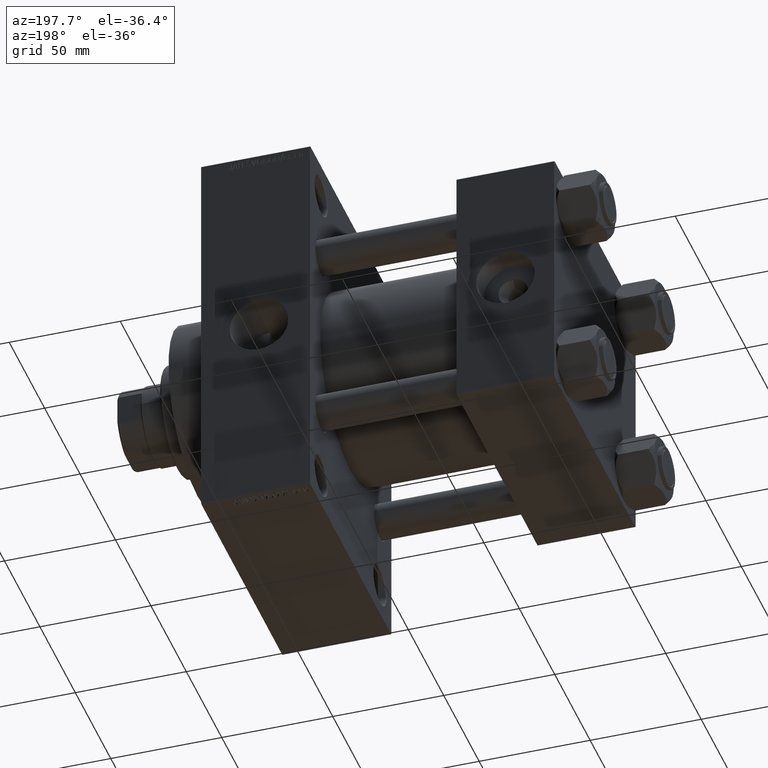
[diagram: clean part render]
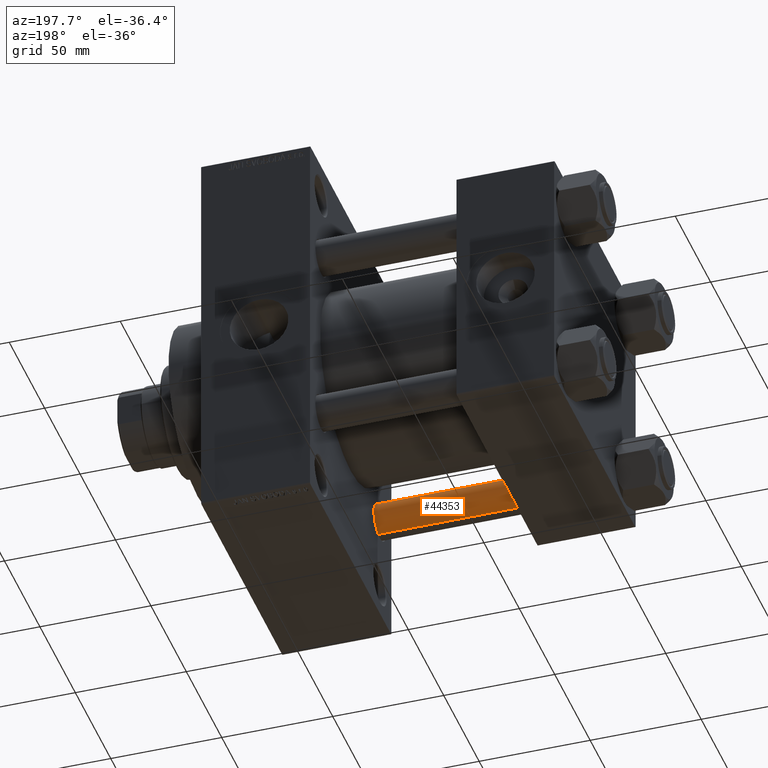
[diagram: same view with one face highlighted and labeled with its STEP entity id]
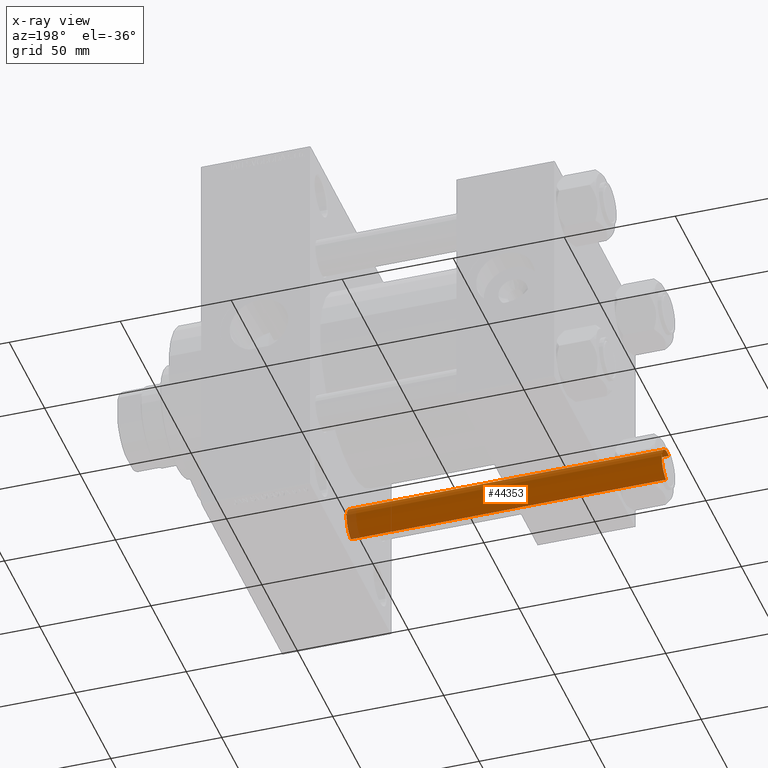
[diagram: x-ray of the same camera — body ghosted, the highlighted face saturated]
A machine part, auxiliary view. The second image highlights one B-rep face of the part: STEP entity #44353.
The next image is the same camera in x-ray: the body ghosted, the highlighted face saturated — about 4% of this face is hidden behind the body in this view.
In plain terms, the highlighted cylindrical surface (edge-blend (fillet) strip) has radius 8 mm, axis along (-1, 0, 0).
Its self-contained STEP definition (entity closure, byte-faithful):
#800 = CYLINDRICAL_SURFACE ( 'NONE', #43688, 8.000000000000000000 ) ;
#1032 = DIRECTION ( 'NONE',  ( -0.000000000000000000, -0.000000000000000000, -1.000000000000000000 ) ) ;
#1055 = CIRCLE ( 'NONE', #40326, 8.000000000000000000 ) ;
#1975 = ORIENTED_EDGE ( 'NONE', *, *, #13689, .T. ) ;
#2047 = EDGE_CURVE ( 'NONE', #5483, #27460, #1055, .T. ) ;
#3207 = ORIENTED_EDGE ( 'NONE', *, *, #28192, .T. ) ;
#4177 = VERTEX_POINT ( 'NONE', #26675 ) ;
#4838 = DIRECTION ( 'NONE',  ( -0.000000000000000000, -0.000000000000000000, -1.000000000000000000 ) ) ;
#5483 = VERTEX_POINT ( 'NONE', #39983 ) ;
#11340 = VECTOR ( 'NONE', #36877, 1000.000000000000000 ) ;
#13689 = EDGE_CURVE ( 'NONE', #27460, #45962, #32550, .T. ) ;
#14232 = ORIENTED_EDGE ( 'NONE', *, *, #33161, .F. ) ;
#15482 = DIRECTION ( 'NONE',  ( -1.000000000000000000, 0.000000000000000000, 0.000000000000000000 ) ) ;
#15605 = CARTESIAN_POINT ( 'NONE',  ( -8.000000000000000000, 0.000000000000000000, 142.4999999999999716 ) ) ;
#17085 = CIRCLE ( 'NONE', #27104, 8.000000000000000000 ) ;
#20258 = DIRECTION ( 'NONE',  ( 1.000000000000000000, 0.000000000000000000, 0.000000000000000000 ) ) ;
#20487 = EDGE_LOOP ( 'NONE', ( #14232, #25140, #1975, #3207 ) ) ;
#20495 = DIRECTION ( 'NONE',  ( 0.000000000000000000, 0.000000000000000000, -1.000000000000000000 ) ) ;
#23402 = VECTOR ( 'NONE', #4838, 1000.000000000000000 ) ;
#25140 = ORIENTED_EDGE ( 'NONE', *, *, #2047, .T. ) ;
#26675 = CARTESIAN_POINT ( 'NONE',  ( 8.000000000000000000, 9.797174393178825657E-16, 0.4999999999999726885 ) ) ;
#27104 = AXIS2_PLACEMENT_3D ( 'NONE', #43868, #29393, #43629 ) ;
#27444 = CARTESIAN_POINT ( 'NONE',  ( -8.000000000000000000, 0.000000000000000000, 0.4999999999999726885 ) ) ;
#27460 = VERTEX_POINT ( 'NONE', #15605 ) ;
#28192 = EDGE_CURVE ( 'NONE', #45962, #4177, #17085, .T. ) ;
#29393 = DIRECTION ( 'NONE',  ( -0.000000000000000000, -0.000000000000000000, 1.000000000000000000 ) ) ;
#30147 = LINE ( 'NONE', #38594, #23402 ) ;
#32550 = LINE ( 'NONE', #44112, #11340 ) ;
#33161 = EDGE_CURVE ( 'NONE', #5483, #4177, #30147, .T. ) ;
#33826 = CARTESIAN_POINT ( 'NONE',  ( 0.000000000000000000, 0.000000000000000000, 143.0000000000000000 ) ) ;
#34054 = FACE_OUTER_BOUND ( 'NONE', #20487, .T. ) ;
#35437 = CARTESIAN_POINT ( 'NONE',  ( 0.000000000000000000, 0.000000000000000000, 142.4999999999999716 ) ) ;
#36877 = DIRECTION ( 'NONE',  ( -0.000000000000000000, -0.000000000000000000, -1.000000000000000000 ) ) ;
#38594 = CARTESIAN_POINT ( 'NONE',  ( 8.000000000000000000, 9.797174393178825657E-16, 143.0000000000000000 ) ) ;
#39983 = CARTESIAN_POINT ( 'NONE',  ( 8.000000000000000000, 9.797174393178825657E-16, 142.4999999999999716 ) ) ;
#40326 = AXIS2_PLACEMENT_3D ( 'NONE', #35437, #20495, #20258 ) ;
#43629 = DIRECTION ( 'NONE',  ( 1.000000000000000000, 0.000000000000000000, 0.000000000000000000 ) ) ;
#43688 = AXIS2_PLACEMENT_3D ( 'NONE', #33826, #1032, #15482 ) ;
#43868 = CARTESIAN_POINT ( 'NONE',  ( 0.000000000000000000, 0.000000000000000000, 0.4999999999999726885 ) ) ;
#44112 = CARTESIAN_POINT ( 'NONE',  ( -8.000000000000000000, 0.000000000000000000, 143.0000000000000000 ) ) ;
#44353 = ADVANCED_FACE ( 'NONE', ( #34054 ), #800, .T. ) ;
#45962 = VERTEX_POINT ( 'NONE', #27444 ) ;